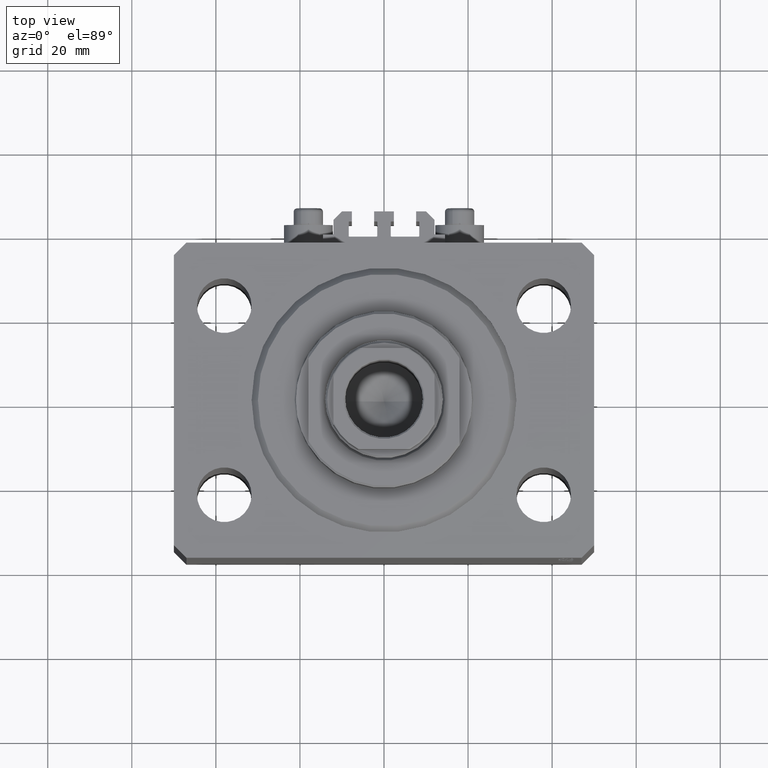
[diagram: clean part render]
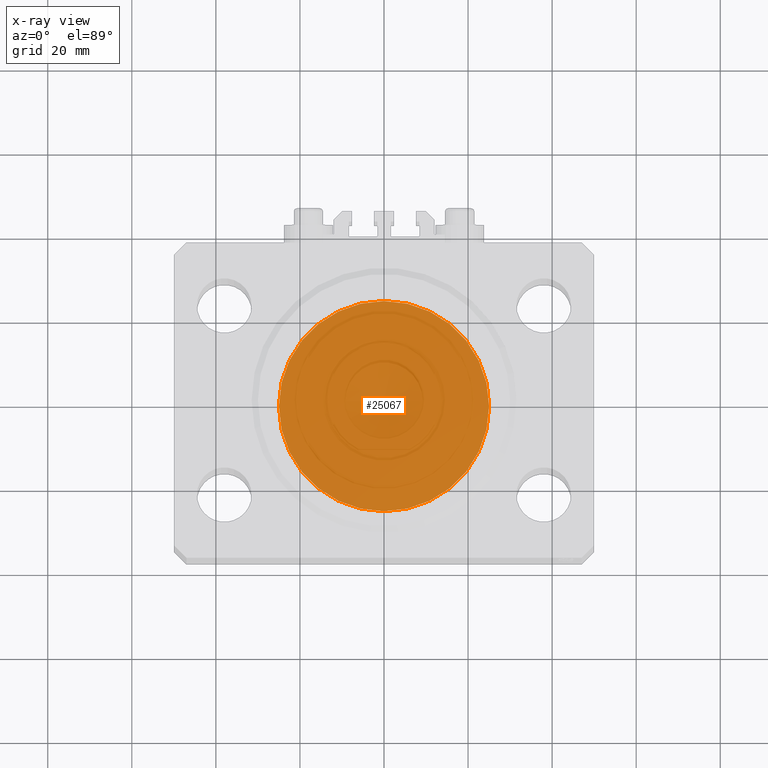
[diagram: x-ray — body ghosted, one internal face saturated and labeled with its STEP entity id]
A machine part, top view, then the same camera in x-ray: the body is ghosted and one INTERNAL B-rep face — a face not visible from any outside direction — is saturated and labeled: STEP entity #25067.
In plain terms, the highlighted planar face has unit normal (0, 0, 1).
Its self-contained STEP definition (entity closure, byte-faithful):
#666 = CARTESIAN_POINT ( 'NONE',  ( 0.000000000000000000, 0.000000000000000000, 0.000000000000000000 ) ) ;
#2014 = FACE_OUTER_BOUND ( 'NONE', #33804, .T. ) ;
#3256 = DIRECTION ( 'NONE',  ( 0.000000000000000000, 0.000000000000000000, 1.000000000000000000 ) ) ;
#4828 = AXIS2_PLACEMENT_3D ( 'NONE', #12495, #38322, #19901 ) ;
#7094 = DIRECTION ( 'NONE',  ( 1.000000000000000000, 0.000000000000000000, 0.000000000000000000 ) ) ;
#12495 = CARTESIAN_POINT ( 'NONE',  ( 0.000000000000000000, 0.000000000000000000, 0.000000000000000000 ) ) ;
#17365 = CARTESIAN_POINT ( 'NONE',  ( 0.000000000000000000, 0.000000000000000000, 0.000000000000000000 ) ) ;
#19901 = DIRECTION ( 'NONE',  ( 1.000000000000000000, 0.000000000000000000, 0.000000000000000000 ) ) ;
#20217 = DIRECTION ( 'NONE',  ( 0.000000000000000000, 0.000000000000000000, 1.000000000000000000 ) ) ;
#21748 = CIRCLE ( 'NONE', #37016, 25.00000000000000000 ) ;
#22832 = AXIS2_PLACEMENT_3D ( 'NONE', #666, #20217, #34325 ) ;
#23439 = VERTEX_POINT ( 'NONE', #39803 ) ;
#25067 = ADVANCED_FACE ( 'NONE', ( #2014 ), #38633, .F. ) ;
#28326 = ORIENTED_EDGE ( 'NONE', *, *, #40446, .F. ) ;
#30274 = ORIENTED_EDGE ( 'NONE', *, *, #42624, .F. ) ;
#33804 = EDGE_LOOP ( 'NONE', ( #28326, #30274 ) ) ;
#34325 = DIRECTION ( 'NONE',  ( 1.000000000000000000, 0.000000000000000000, -0.000000000000000000 ) ) ;
#37016 = AXIS2_PLACEMENT_3D ( 'NONE', #17365, #3256, #7094 ) ;
#38322 = DIRECTION ( 'NONE',  ( 0.000000000000000000, 0.000000000000000000, 1.000000000000000000 ) ) ;
#38633 = PLANE ( 'NONE',  #22832 ) ;
#39660 = CARTESIAN_POINT ( 'NONE',  ( 25.00000000000000000, 3.061616997868383043E-15, 0.000000000000000000 ) ) ;
#39803 = CARTESIAN_POINT ( 'NONE',  ( -25.00000000000000000, 0.000000000000000000, 0.000000000000000000 ) ) ;
#40446 = EDGE_CURVE ( 'NONE', #23439, #45760, #46100, .T. ) ;
#42624 = EDGE_CURVE ( 'NONE', #45760, #23439, #21748, .T. ) ;
#45760 = VERTEX_POINT ( 'NONE', #39660 ) ;
#46100 = CIRCLE ( 'NONE', #4828, 25.00000000000000000 ) ;